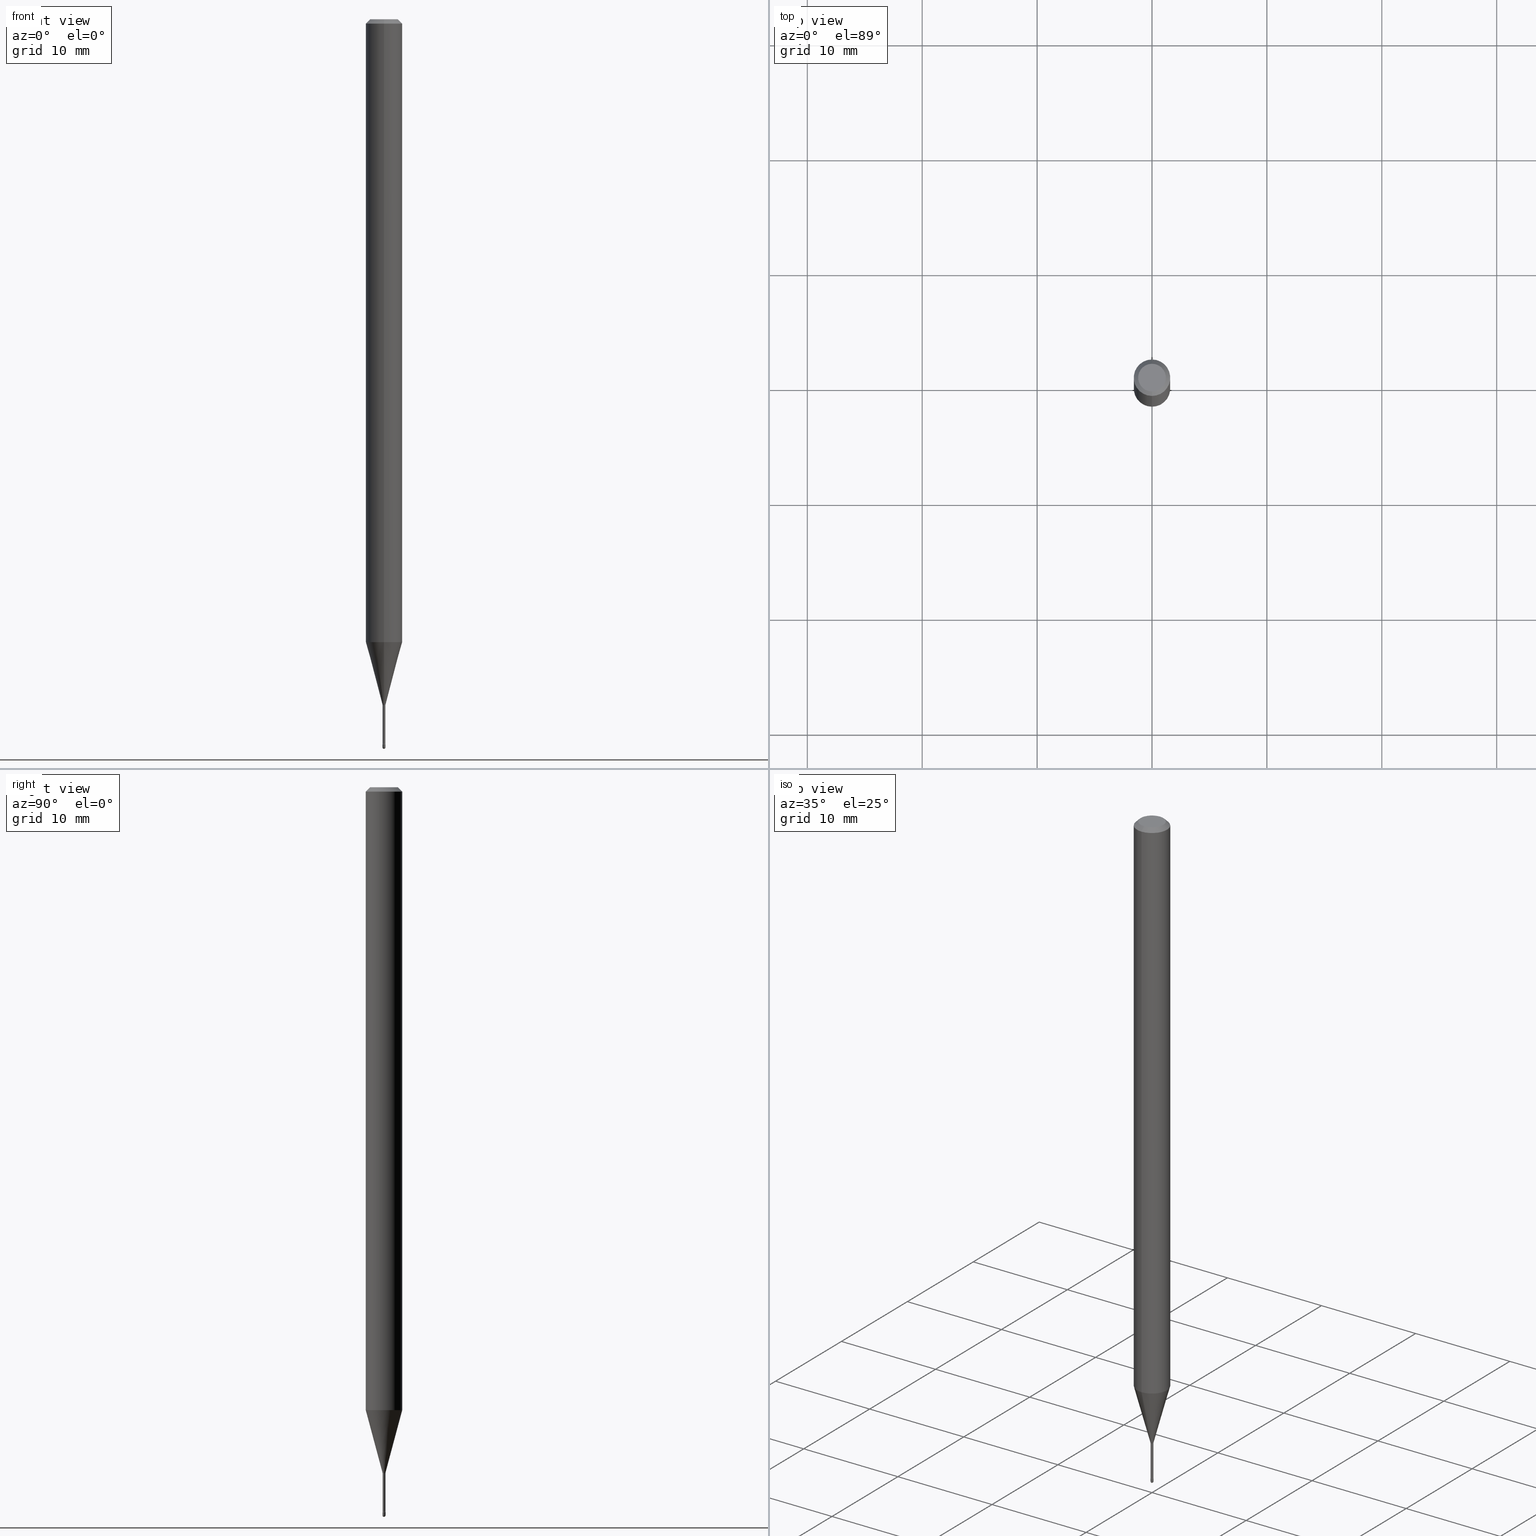
[diagram: canonical four-view strip — front | top / right | iso, engineering-drawing reading convention]
A machine part, canonical four-view strip (front | top / right | iso — engineering-drawing reading convention). The complete STEP part file that produces these views, byte-faithful:
ISO-10303-21;
HEADER;
FILE_DESCRIPTION (( 'STEP AP203' ),
    '1' );
FILE_NAME ('09407.STEP',
    '2024-04-09T22:48:46',
    ( '' ),
    ( '' ),
    'SwSTEP 2.0',
    'SolidWorks 2023',
    '' );
FILE_SCHEMA (( 'CONFIG_CONTROL_DESIGN' ));
ENDSEC;

DATA;
#1 = CIRCLE ( 'NONE', #321, 0.004700000000000012328 ) ;
#2 = DIRECTION ( 'NONE',  ( -6.982962677686265922E-15, -1.000000000000000000, 3.483106191921935554E-15 ) ) ;
#3 = ADVANCED_FACE ( 'NONE', ( #127 ), #339, .T. ) ;
#4 = ORIENTED_EDGE ( 'NONE', *, *, #366, .T. ) ;
#5 = DIRECTION ( 'NONE',  ( -6.982962677686265922E-15, -1.000000000000000000, 0.000000000000000000 ) ) ;
#6 = DIRECTION ( 'NONE',  ( 1.000000000000000000, -6.982962677686336130E-15, 0.000000000000000000 ) ) ;
#7 = AXIS2_PLACEMENT_3D ( 'NONE', #345, #439, #517 ) ;
#8 = AXIS2_PLACEMENT_3D ( 'NONE', #265, #549, #89 ) ;
#9 = DIRECTION ( 'NONE',  ( -2.445468806185136877E-29, 3.491481338843145188E-15, 1.000000000000000000 ) ) ;
#10 = APPROVAL_PERSON_ORGANIZATION ( #290, #69, #209 ) ;
#11 = CARTESIAN_POINT ( 'NONE',  ( 5.748700289335905563E-29, -8.216144592349570329E-15, -2.351974787463811278 ) ) ;
#12 = DIRECTION ( 'NONE',  ( -6.982962677686266711E-15, -1.000000000000000000, 3.493109718909405052E-15 ) ) ;
#13 = PERSON_AND_ORGANIZATION ( #375, #330 ) ;
#14 = CLOSED_SHELL ( 'NONE', ( #166, #139, #241, #465, #247, #455, #121, #282, #3, #59, #77, #185, #273, #224 ) ) ;
#15 = PLANE ( 'NONE',  #93 ) ;
#16 = CIRCLE ( 'NONE', #376, 0.004999999999999997502 ) ;
#17 =( LENGTH_UNIT ( ) NAMED_UNIT ( * ) SI_UNIT ( $, .METRE. ) );
#18 = CARTESIAN_POINT ( 'NONE',  ( -4.364351673553394567E-16, -0.06250000000000745237, -2.134287463322519063 ) ) ;
#19 = PRODUCT_RELATED_PRODUCT_CATEGORY ( 'detail', '', ( #310 ) ) ;
#20 = CARTESIAN_POINT ( 'NONE',  ( 4.440892098500625669E-16, 0.06250000000000000000, 2.597540414594082475E-16 ) ) ;
#21 = DIMENSIONAL_EXPONENTS ( 1.000000000000000000, 0.000000000000000000, 0.000000000000000000, 0.000000000000000000, 0.000000000000000000, 0.000000000000000000, 0.000000000000000000 ) ;
#22 = EDGE_CURVE ( 'NONE', #486, #312, #194, .T. ) ;
#23 = ORIENTED_EDGE ( 'NONE', *, *, #274, .F. ) ;
#24 = CC_DESIGN_PERSON_AND_ORGANIZATION_ASSIGNMENT ( #168, #80, ( #508 ) ) ;
#25 = ORIENTED_EDGE ( 'NONE', *, *, #267, .F. ) ;
#26 = DIRECTION ( 'NONE',  ( 1.839019923739599526E-15, 0.2588190451025248473, 0.9659258262890673130 ) ) ;
#27 = DIRECTION ( 'NONE',  ( 1.000000000000000000, -6.982962677686142071E-15, 0.000000000000000000 ) ) ;
#28 = AXIS2_PLACEMENT_3D ( 'NONE', #170, #297, #338 ) ;
#29 = AXIS2_PLACEMENT_3D ( 'NONE', #542, #212, #240 ) ;
#30 = COORDINATED_UNIVERSAL_TIME_OFFSET ( 5, 0, .BEHIND. ) ;
#31 = EDGE_LOOP ( 'NONE', ( #541, #393, #482, #44 ) ) ;
#32 = DIRECTION ( 'NONE',  ( 2.444331714462359119E-29, -3.493109718909404263E-15, -1.000000000000000000 ) ) ;
#33 = DIRECTION ( 'NONE',  ( -7.105427357600999492E-15, -1.000000000000000000, 0.000000000000000000 ) ) ;
#34 = APPROVAL_ROLE ( '' ) ;
#35 = EDGE_CURVE ( 'NONE', #353, #301, #158, .T. ) ;
#36 = ORIENTED_EDGE ( 'NONE', *, *, #143, .T. ) ;
#37 = CIRCLE ( 'NONE', #360, 0.005000000000000040870 ) ;
#38 = ORIENTED_EDGE ( 'NONE', *, *, #558, .T. ) ;
#39 = AXIS2_PLACEMENT_3D ( 'NONE', #298, #147, #452 ) ;
#40 = DIRECTION ( 'NONE',  ( -6.982962677686265922E-15, -1.000000000000000000, 0.000000000000000000 ) ) ;
#41 = FACE_OUTER_BOUND ( 'NONE', #256, .T. ) ;
#42 = DIRECTION ( 'NONE',  ( -1.000000000000000000, 7.105427357601001070E-15, -4.926315508542082329E-29 ) ) ;
#43 = APPROVAL_DATE_TIME ( #426, #94 ) ;
#44 = ORIENTED_EDGE ( 'NONE', *, *, #359, .F. ) ;
#45 = ORIENTED_EDGE ( 'NONE', *, *, #320, .F. ) ;
#46 = EDGE_LOOP ( 'NONE', ( #114, #316, #137, #503 ) ) ;
#47 = AXIS2_PLACEMENT_3D ( 'NONE', #527, #142, #12 ) ;
#48 = DIRECTION ( 'NONE',  ( 1.000000000000000000, -6.982962677686266711E-15, 4.876176775795936914E-29 ) ) ;
#49 = EDGE_CURVE ( 'NONE', #264, #151, #349, .T. ) ;
#50 = AXIS2_PLACEMENT_3D ( 'NONE', #91, #192, #5 ) ;
#51 = DIRECTION ( 'NONE',  ( -2.444331714462359119E-29, 3.493109718909404657E-15, 1.000000000000000000 ) ) ;
#52 = DIRECTION ( 'NONE',  ( -2.445468806185136597E-29, 3.491481338843145583E-15, 1.000000000000000000 ) ) ;
#53 = APPROVAL_DATE_TIME ( #531, #69 ) ;
#54 = CC_DESIGN_PERSON_AND_ORGANIZATION_ASSIGNMENT ( #385, #126, ( #508 ) ) ;
#55 = DIRECTION ( 'NONE',  ( -1.000000000000000000, 6.982962677686265922E-15, -4.883557194083112340E-29 ) ) ;
#56 = DIRECTION ( 'NONE',  ( -2.444331714462359119E-29, 3.493109718909404263E-15, 1.000000000000000000 ) ) ;
#57 = VERTEX_POINT ( 'NONE', #260 ) ;
#58 = CARTESIAN_POINT ( 'NONE',  ( -3.638900483451488413E-17, -0.005211112605672221960, -2.348092501787272912 ) ) ;
#59 = ADVANCED_FACE ( 'NONE', ( #41 ), #520, .F. ) ;
#60 = DATE_TIME_ROLE ( 'creation_date' ) ;
#61 = DIRECTION ( 'NONE',  ( -2.444331714462359119E-29, 3.493109718909404263E-15, 1.000000000000000000 ) ) ;
#62 = DIRECTION ( 'NONE',  ( -2.444331714462359119E-29, 3.493109718909404657E-15, 1.000000000000000000 ) ) ;
#63 = CIRCLE ( 'NONE', #47, 0.04749999999999999362 ) ;
#64 = APPROVAL_PERSON_ORGANIZATION ( #164, #342, #176 ) ;
#65 = DIRECTION ( 'NONE',  ( -2.444331714462359119E-29, 3.493109718909404657E-15, 1.000000000000000000 ) ) ;
#66 = EDGE_LOOP ( 'NONE', ( #464, #507, #415, #266, #180 ) ) ;
#67 = ADVANCED_FACE ( 'NONE', ( #473 ), #433, .T. ) ;
#68 = DIRECTION ( 'NONE',  ( -2.444331714462359119E-29, 3.493109718909404657E-15, 1.000000000000000000 ) ) ;
#69 = APPROVAL ( #283, 'UNSPECIFIED' ) ;
#70 = EDGE_LOOP ( 'NONE', ( #340, #419 ) ) ;
#71 = ORIENTED_EDGE ( 'NONE', *, *, #346, .F. ) ;
#72 = LINE ( 'NONE', #538, #210 ) ;
#73 = LINE ( 'NONE', #417, #479 ) ;
#74 = SECURITY_CLASSIFICATION_LEVEL ( 'unclassified' ) ;
#75 = ORIENTED_EDGE ( 'NONE', *, *, #258, .F. ) ;
#76 = CARTESIAN_POINT ( 'NONE',  ( 5.216906534378652814E-29, -7.455300281078391221E-15, -2.134287463322519507 ) ) ;
#77 = ADVANCED_FACE ( 'NONE', ( #322 ), #15, .F. ) ;
#78 = PERSON_AND_ORGANIZATION_ROLE ( 'classification_officer' ) ;
#79 = ORIENTED_EDGE ( 'NONE', *, *, #485, .F. ) ;
#80 = PERSON_AND_ORGANIZATION_ROLE ( 'creator' ) ;
#81 = VERTEX_POINT ( 'NONE', #58 ) ;
#82 = CARTESIAN_POINT ( 'NONE',  ( -1.375643647503619973E-16, -0.01970000000000822135, -2.351974787463811278 ) ) ;
#83 = CIRCLE ( 'NONE', #95, 0.004700000000000003654 ) ;
#84 = EDGE_CURVE ( 'NONE', #380, #312, #72, .T. ) ;
#85 = EDGE_LOOP ( 'NONE', ( #75, #36, #509, #45 ) ) ;
#86 = CONICAL_SURFACE ( 'NONE', #470, 0.005211112605664020188, 0.2617993877991501295 ) ;
#87 = VERTEX_POINT ( 'NONE', #149 ) ;
#88 = PRODUCT_DEFINITION_SHAPE ( 'NONE', 'NONE',  #179 ) ;
#89 = DIRECTION ( 'NONE',  ( -6.982962677686266711E-15, -1.000000000000000000, 0.000000000000000000 ) ) ;
#90 = ORIENTED_EDGE ( 'NONE', *, *, #22, .F. ) ;
#91 = CARTESIAN_POINT ( 'NONE',  ( 5.749006564613659511E-29, -8.215705988719720039E-15, -2.351974787463811278 ) ) ;
#92 = ORIENTED_EDGE ( 'NONE', *, *, #218, .F. ) ;
#93 = AXIS2_PLACEMENT_3D ( 'NONE', #198, #461, #535 ) ;
#94 = APPROVAL ( #197, 'UNSPECIFIED' ) ;
#95 = AXIS2_PLACEMENT_3D ( 'NONE', #548, #213, #117 ) ;
#96 = DIRECTION ( 'NONE',  ( -6.982962677686265922E-15, -1.000000000000000000, 0.000000000000000000 ) ) ;
#97 = EDGE_CURVE ( 'NONE', #560, #57, #37, .T. ) ;
#98 = CARTESIAN_POINT ( 'NONE',  ( 3.339550858072475935E-17, 0.004700000000000007991, 4.616557832123718294E-16 ) ) ;
#99 = CARTESIAN_POINT ( 'NONE',  ( 2.015285171659929745E-45, -2.895527618967988786E-31, -8.266968401839803146E-17 ) ) ;
#100 =( NAMED_UNIT ( * ) SI_UNIT ( $, .STERADIAN. ) SOLID_ANGLE_UNIT ( ) );
#101 = AXIS2_PLACEMENT_3D ( 'NONE', #405, #281, #238 ) ;
#102 = AXIS2_PLACEMENT_3D ( 'NONE', #76, #456, #425 ) ;
#103 = DIRECTION ( 'NONE',  ( -1.807323732225328562E-15, -0.2588190451025179639, 0.9659258262890689783 ) ) ;
#104 = APPLICATION_PROTOCOL_DEFINITION ( 'international standard', 'config_control_design', 1994, #280 ) ;
#105 = FACE_OUTER_BOUND ( 'NONE', #292, .T. ) ;
#106 = PERSON_AND_ORGANIZATION_ROLE ( 'design_owner' ) ;
#107 = DIRECTION ( 'NONE',  ( 2.444331714462359119E-29, -3.493109718909404657E-15, -1.000000000000000000 ) ) ;
#108 = DIRECTION ( 'NONE',  ( 1.000000000000000000, -6.982962677686265922E-15, 4.883557194083112340E-29 ) ) ;
#109 = DIRECTION ( 'NONE',  ( -6.982962677686265922E-15, -1.000000000000000000, 3.493109718909401107E-15 ) ) ;
#110 = MECHANICAL_CONTEXT ( 'NONE', #280, 'mechanical' ) ;
#111 = PLANE ( 'NONE',  #435 ) ;
#112 = AXIS2_PLACEMENT_3D ( 'NONE', #539, #496, #406 ) ;
#113 = PERSON_AND_ORGANIZATION ( #375, #330 ) ;
#114 = ORIENTED_EDGE ( 'NONE', *, *, #143, .F. ) ;
#115 = ORIENTED_EDGE ( 'NONE', *, *, #227, .F. ) ;
#116 = MANIFOLD_SOLID_BREP ( 'Body-Move/Copy2[2]', #14 ) ;
#117 = DIRECTION ( 'NONE',  ( -6.982962677686265922E-15, -1.000000000000000000, 0.000000000000000000 ) ) ;
#118 = ORIENTED_EDGE ( 'NONE', *, *, #218, .T. ) ;
#119 = VERTEX_POINT ( 'NONE', #540 ) ;
#120 = DIRECTION ( 'NONE',  ( -2.444331714462359119E-29, 3.493109718909404657E-15, 1.000000000000000000 ) ) ;
#121 = ADVANCED_FACE ( 'NONE', ( #153 ), #409, .T. ) ;
#122 = AXIS2_PLACEMENT_3D ( 'NONE', #562, #255, #336 ) ;
#123 = CALENDAR_DATE ( 2024, 9, 4 ) ;
#124 = CIRCLE ( 'NONE', #252, 0.01500000000000000638 ) ;
#125 = MANIFOLD_SOLID_BREP ( 'Body-Move/Copy2[1]', #144 ) ;
#126 = PERSON_AND_ORGANIZATION_ROLE ( 'design_supplier' ) ;
#127 = FACE_OUTER_BOUND ( 'NONE', #525, .T. ) ;
#128 = CARTESIAN_POINT ( 'NONE',  ( 6.101444671431915719E-29, -8.711245940413648329E-15, -2.495000000000000107 ) ) ;
#129 = EDGE_CURVE ( 'NONE', #560, #151, #477, .T. ) ;
#130 = ORIENTED_EDGE ( 'NONE', *, *, #49, .F. ) ;
#131 = CIRCLE ( 'NONE', #191, 0.004999999999999997502 ) ;
#132 = AXIS2_PLACEMENT_3D ( 'NONE', #289, #150, #109 ) ;
#133 = ORIENTED_EDGE ( 'NONE', *, *, #371, .F. ) ;
#134 = FACE_OUTER_BOUND ( 'NONE', #152, .T. ) ;
#135 = ORIENTED_EDGE ( 'NONE', *, *, #202, .F. ) ;
#136 = LINE ( 'NONE', #98, #544 ) ;
#137 = ORIENTED_EDGE ( 'NONE', *, *, #320, .T. ) ;
#138 = CYLINDRICAL_SURFACE ( 'NONE', #395, 0.004999999999999997502 ) ;
#139 = ADVANCED_FACE ( 'NONE', ( #384 ), #172, .T. ) ;
#140 = TOROIDAL_SURFACE ( 'NONE', #454, 0.01970000000000000570, 0.01500000000000006189 ) ;
#141 = CARTESIAN_POINT ( 'NONE',  ( 4.440892098501151740E-16, 0.06249999999999995143, -0.01500000000000030129 ) ) ;
#142 = DIRECTION ( 'NONE',  ( -2.444331714462359119E-29, 3.493109718909404657E-15, 1.000000000000000000 ) ) ;
#143 = EDGE_CURVE ( 'NONE', #545, #169, #494, .T. ) ;
#144 = CLOSED_SHELL ( 'NONE', ( #67, #208, #490, #233, #399 ) ) ;
#145 = AXIS2_PLACEMENT_3D ( 'NONE', #408, #107, #284 ) ;
#146 = CC_DESIGN_APPROVAL ( #69, ( #179 ) ) ;
#147 = DIRECTION ( 'NONE',  ( -2.444331714462359119E-29, 3.493109718909404657E-15, 1.000000000000000000 ) ) ;
#148 = DIRECTION ( 'NONE',  ( 7.105427357601001859E-15, 1.000000000000000000, 0.000000000000000000 ) ) ;
#149 = CARTESIAN_POINT ( 'NONE',  ( -3.281992458506798680E-17, -0.004700000000008219304, -2.351974787463811278 ) ) ;
#150 = DIRECTION ( 'NONE',  ( -2.444331714462359119E-29, 3.493109718909404657E-15, 1.000000000000000000 ) ) ;
#151 = VERTEX_POINT ( 'NONE', #451 ) ;
#152 = EDGE_LOOP ( 'NONE', ( #438, #296, #432, #225 ) ) ;
#153 = FACE_OUTER_BOUND ( 'NONE', #397, .T. ) ;
#154 = CARTESIAN_POINT ( 'NONE',  ( 3.552713678806574616E-17, 0.004999999999991322150, -2.484999999999999876 ) ) ;
#155 =( NAMED_UNIT ( * ) PLANE_ANGLE_UNIT ( ) SI_UNIT ( $, .RADIAN. ) );
#156 = ORIENTED_EDGE ( 'NONE', *, *, #352, .T. ) ;
#157 = LINE ( 'NONE', #459, #318 ) ;
#158 = CIRCLE ( 'NONE', #519, 0.005000000000000001839 ) ;
#159 = CIRCLE ( 'NONE', #521, 0.01500000000000006189 ) ;
#160 = CARTESIAN_POINT ( 'NONE',  ( -0.004999999999999997502, -8.658261396931429042E-15, -2.495000000000000551 ) ) ;
#161 = LOCAL_TIME ( 18, 48, 46.00000000000000000, #30 ) ;
#162 = DIRECTION ( 'NONE',  ( 1.000000000000000000, -6.982962677686265922E-15, 4.876176775795935793E-29 ) ) ;
#163 = EDGE_CURVE ( 'NONE', #81, #545, #386, .T. ) ;
#164 = PERSON_AND_ORGANIZATION ( #375, #330 ) ;
#165 = ORIENTED_EDGE ( 'NONE', *, *, #267, .T. ) ;
#166 = ADVANCED_FACE ( 'NONE', ( #250 ), #140, .F. ) ;
#167 = DIRECTION ( 'NONE',  ( -2.444331714462359119E-29, 3.493109718909404657E-15, 1.000000000000000000 ) ) ;
#168 = PERSON_AND_ORGANIZATION ( #375, #330 ) ;
#169 = VERTEX_POINT ( 'NONE', #390 ) ;
#170 = CARTESIAN_POINT ( 'NONE',  ( 6.066709664809331474E-29, -8.670177699308193072E-15, -2.482015037688680259 ) ) ;
#171 = CARTESIAN_POINT ( 'NONE',  ( 0.000000000000000000, 0.000000000000000000, 0.000000000000000000 ) ) ;
#172 = CYLINDRICAL_SURFACE ( 'NONE', #101, 0.004700000000000007991 ) ;
#173 = VECTOR ( 'NONE', #379, 39.37007874015748143 ) ;
#174 = AXIS2_PLACEMENT_3D ( 'NONE', #200, #498, #27 ) ;
#175 = ORIENTED_EDGE ( 'NONE', *, *, #84, .F. ) ;
#176 = APPROVAL_ROLE ( '' ) ;
#177 = ORIENTED_EDGE ( 'NONE', *, *, #352, .F. ) ;
#178 = DIRECTION ( 'NONE',  ( -2.444331714462359119E-29, 3.493109718909404657E-15, 1.000000000000000000 ) ) ;
#179 = PRODUCT_DEFINITION ( 'UNKNOWN', '', #508, #253 ) ;
#180 = ORIENTED_EDGE ( 'NONE', *, *, #427, .F. ) ;
#181 = DIRECTION ( 'NONE',  ( -6.982962677686266711E-15, -1.000000000000000000, 0.000000000000000000 ) ) ;
#182 = AXIS2_PLACEMENT_3D ( 'NONE', #171, #306, #431 ) ;
#183 = CIRCLE ( 'NONE', #102, 0.06250000000000000000 ) ;
#184 = ORIENTED_EDGE ( 'NONE', *, *, #196, .T. ) ;
#185 = ADVANCED_FACE ( 'NONE', ( #421 ), #469, .F. ) ;
#186 = CARTESIAN_POINT ( 'NONE',  ( 3.446132268442561466E-17, 0.004699999999991343047, -2.482015037688680259 ) ) ;
#187 = CARTESIAN_POINT ( 'NONE',  ( 6.074164310438962886E-29, -8.680377651489870003E-15, -2.484999999999999876 ) ) ;
#188 = ORIENTED_EDGE ( 'NONE', *, *, #196, .F. ) ;
#189 = CARTESIAN_POINT ( 'NONE',  ( -3.773273898774340269E-16, -0.04749999999999999362, 8.325302762979867448E-17 ) ) ;
#190 = CARTESIAN_POINT ( 'NONE',  ( 0.004999999999999997502, -3.491481338843131630E-17, 2.438088387897967108E-31 ) ) ;
#191 = AXIS2_PLACEMENT_3D ( 'NONE', #561, #308, #344 ) ;
#192 = DIRECTION ( 'NONE',  ( -2.444331714462359119E-29, 3.493109718909404657E-15, 1.000000000000000000 ) ) ;
#193 = FACE_OUTER_BOUND ( 'NONE', #382, .T. ) ;
#194 = LINE ( 'NONE', #537, #173 ) ;
#195 = DIRECTION ( 'NONE',  ( -2.444331714462359119E-29, 3.493109718909404657E-15, 1.000000000000000000 ) ) ;
#196 = EDGE_CURVE ( 'NONE', #324, #312, #226, .T. ) ;
#197 = APPROVAL_STATUS ( 'not_yet_approved' ) ;
#198 = CARTESIAN_POINT ( 'NONE',  ( 3.491481338849208940E-17, 0.004999999999991321283, -2.484999999999999876 ) ) ;
#199 = AXIS2_PLACEMENT_3D ( 'NONE', #441, #51, #96 ) ;
#200 = CARTESIAN_POINT ( 'NONE',  ( 6.101444671431917961E-29, -8.711245940413649907E-15, -2.495000000000000551 ) ) ;
#201 = CALENDAR_DATE ( 2024, 9, 4 ) ;
#202 = EDGE_CURVE ( 'NONE', #522, #486, #434, .T. ) ;
#203 = FACE_OUTER_BOUND ( 'NONE', #70, .T. ) ;
#204 = DIRECTION ( 'NONE',  ( 6.982962677686265133E-15, 1.000000000000000000, 0.000000000000000000 ) ) ;
#205 = DIRECTION ( 'NONE',  ( -6.982962677686265133E-15, -1.000000000000000000, 3.493109718909404657E-15 ) ) ;
#206 = DIRECTION ( 'NONE',  ( -6.982962677686265922E-15, -1.000000000000000000, 3.493109718909404657E-15 ) ) ;
#207 = CARTESIAN_POINT ( 'NONE',  ( -3.281992458512550585E-17, -0.004700000000000007991, 4.944910145701202971E-16 ) ) ;
#208 = ADVANCED_FACE ( 'NONE', ( #302 ), #475, .T. ) ;
#209 = APPROVAL_ROLE ( '' ) ;
#210 = VECTOR ( 'NONE', #325, 39.37007874015748143 ) ;
#211 = AXIS2_PLACEMENT_3D ( 'NONE', #400, #232, #6 ) ;
#212 = DIRECTION ( 'NONE',  ( -2.444331714462359119E-29, 3.493109718909404657E-15, 1.000000000000000000 ) ) ;
#213 = DIRECTION ( 'NONE',  ( -2.444331714462359119E-29, 3.493109718909404657E-15, 1.000000000000000000 ) ) ;
#214 = SHAPE_DEFINITION_REPRESENTATION ( #88, #524 ) ;
#215 = SPHERICAL_SURFACE ( 'NONE', #7, 0.005000000000000040870 ) ;
#216 = VERTEX_POINT ( 'NONE', #257 ) ;
#217 = DIRECTION ( 'NONE',  ( -1.000000000000000000, 6.982962677686265922E-15, -4.883557194083113462E-29 ) ) ;
#218 = EDGE_CURVE ( 'NONE', #259, #57, #131, .T. ) ;
#219 = AXIS2_PLACEMENT_3D ( 'NONE', #305, #178, #547 ) ;
#220 = DATE_TIME_ROLE ( 'classification_date' ) ;
#221 = EDGE_LOOP ( 'NONE', ( #550, #392, #130, #25 ) ) ;
#222 = DIRECTION ( 'NONE',  ( 6.982962677686265922E-15, 1.000000000000000000, 0.000000000000000000 ) ) ;
#223 = ORIENTED_EDGE ( 'NONE', *, *, #443, .F. ) ;
#224 = ADVANCED_FACE ( 'NONE', ( #478 ), #506, .F. ) ;
#225 = ORIENTED_EDGE ( 'NONE', *, *, #483, .F. ) ;
#226 = CIRCLE ( 'NONE', #219, 0.06250000000000000000 ) ;
#227 = EDGE_CURVE ( 'NONE', #301, #353, #440, .T. ) ;
#228 = AXIS2_PLACEMENT_3D ( 'NONE', #99, #230, #354 ) ;
#229 = ORIENTED_EDGE ( 'NONE', *, *, #453, .F. ) ;
#230 = DIRECTION ( 'NONE',  ( -2.444331714462359119E-29, 3.493109718909404657E-15, 1.000000000000000000 ) ) ;
#231 = DIRECTION ( 'NONE',  ( 2.444331714462359119E-29, -3.493109718909404657E-15, -1.000000000000000000 ) ) ;
#232 = DIRECTION ( 'NONE',  ( -2.445468806185136597E-29, 3.491481338843145583E-15, 1.000000000000000000 ) ) ;
#233 = ADVANCED_FACE ( 'NONE', ( #341 ), #215, .T. ) ;
#234 = LINE ( 'NONE', #493, #442 ) ;
#235 = VECTOR ( 'NONE', #446, 39.37007874015748143 ) ;
#236 = PERSON_AND_ORGANIZATION_ROLE ( 'creator' ) ;
#237 = CC_DESIGN_DATE_AND_TIME_ASSIGNMENT ( #404, #60, ( #179 ) ) ;
#238 = DIRECTION ( 'NONE',  ( -6.982962677686265922E-15, -1.000000000000000000, 3.493109718909401107E-15 ) ) ;
#239 = DIRECTION ( 'NONE',  ( -2.444331714462359119E-29, 3.493109718909404657E-15, 1.000000000000000000 ) ) ;
#240 = DIRECTION ( 'NONE',  ( -6.982962677686265922E-15, -1.000000000000000000, 3.493109718909404263E-15 ) ) ;
#241 = ADVANCED_FACE ( 'NONE', ( #134 ), #309, .F. ) ;
#242 = VECTOR ( 'NONE', #61, 39.37007874015748143 ) ;
#243 =( CONVERSION_BASED_UNIT ( 'INCH', #533 ) LENGTH_UNIT ( ) NAMED_UNIT ( #21 ) );
#244 = LINE ( 'NONE', #207, #242 ) ;
#245 = ORIENTED_EDGE ( 'NONE', *, *, #492, .F. ) ;
#246 = DIRECTION ( 'NONE',  ( -6.982962677686265133E-15, -1.000000000000000000, 0.000000000000000000 ) ) ;
#247 = ADVANCED_FACE ( 'NONE', ( #193 ), #412, .T. ) ;
#248 = CYLINDRICAL_SURFACE ( 'NONE', #39, 0.06250000000000000000 ) ;
#249 = ORIENTED_EDGE ( 'NONE', *, *, #359, .T. ) ;
#250 = FACE_OUTER_BOUND ( 'NONE', #85, .T. ) ;
#251 = AXIS2_PLACEMENT_3D ( 'NONE', #369, #68, #40 ) ;
#252 = AXIS2_PLACEMENT_3D ( 'NONE', #358, #489, #497 ) ;
#253 = DESIGN_CONTEXT ( 'detailed design', #502, 'design' ) ;
#254 = DATE_AND_TIME ( #559, #263 ) ;
#255 = DIRECTION ( 'NONE',  ( -2.445468806185136597E-29, 3.491481338843145583E-15, 1.000000000000000000 ) ) ;
#256 = EDGE_LOOP ( 'NONE', ( #156, #463 ) ) ;
#257 = CARTESIAN_POINT ( 'NONE',  ( -0.004999999999999997502, -8.658261396931429042E-15, -2.484999999999999876 ) ) ;
#258 = EDGE_CURVE ( 'NONE', #545, #81, #365, .T. ) ;
#259 = VERTEX_POINT ( 'NONE', #511 ) ;
#260 = CARTESIAN_POINT ( 'NONE',  ( 3.491481338849247767E-17, 0.004999999999991308272, -2.495000000000000551 ) ) ;
#261 = CARTESIAN_POINT ( 'NONE',  ( 5.739516970609894167E-29, -8.202144738891422775E-15, -2.348092501787272912 ) ) ;
#262 = AXIS2_PLACEMENT_3D ( 'NONE', #261, #167, #348 ) ;
#263 = LOCAL_TIME ( 18, 48, 46.00000000000000000, #388 ) ;
#264 = VERTEX_POINT ( 'NONE', #160 ) ;
#265 = CARTESIAN_POINT ( 'NONE',  ( 6.074164310438962886E-29, -8.680377651489870003E-15, -2.484999999999999876 ) ) ;
#266 = ORIENTED_EDGE ( 'NONE', *, *, #443, .T. ) ;
#267 = EDGE_CURVE ( 'NONE', #57, #264, #311, .T. ) ;
#268 = ORIENTED_EDGE ( 'NONE', *, *, #381, .F. ) ;
#269 = FACE_OUTER_BOUND ( 'NONE', #66, .T. ) ;
#270 = EDGE_CURVE ( 'NONE', #119, #324, #73, .T. ) ;
#271 = AXIS2_PLACEMENT_3D ( 'NONE', #275, #195, #2 ) ;
#272 = CARTESIAN_POINT ( 'NONE',  ( 0.000000000000000000, 0.000000000000000000, 0.000000000000000000 ) ) ;
#273 = ADVANCED_FACE ( 'NONE', ( #332 ), #367, .T. ) ;
#274 = EDGE_CURVE ( 'NONE', #169, #87, #83, .T. ) ;
#275 = CARTESIAN_POINT ( 'NONE',  ( 3.666497571693559050E-31, -5.239664578364136248E-17, -0.01500000000000008271 ) ) ;
#276 = AXIS2_PLACEMENT_3D ( 'NONE', #411, #407, #148 ) ;
#277 = DIRECTION ( 'NONE',  ( -2.444331714462359119E-29, 3.493109718909404657E-15, 1.000000000000000000 ) ) ;
#278 = CARTESIAN_POINT ( 'NONE',  ( 6.101444671431917961E-29, -8.711245940413649907E-15, -2.495000000000000551 ) ) ;
#279 = PERSON_AND_ORGANIZATION ( #375, #330 ) ;
#280 = APPLICATION_CONTEXT ( 'configuration controlled 3d designs of mechanical parts and assemblies' ) ;
#281 = DIRECTION ( 'NONE',  ( -2.444331714462359119E-29, 3.493109718909404657E-15, 1.000000000000000000 ) ) ;
#282 = ADVANCED_FACE ( 'NONE', ( #285 ), #248, .T. ) ;
#283 = APPROVAL_STATUS ( 'not_yet_approved' ) ;
#284 = DIRECTION ( 'NONE',  ( 6.982962677686265922E-15, 1.000000000000000000, -3.483106191921935554E-15 ) ) ;
#285 = FACE_OUTER_BOUND ( 'NONE', #347, .T. ) ;
#286 = VECTOR ( 'NONE', #9, 39.37007874015748143 ) ;
#287 = CARTESIAN_POINT ( 'NONE',  ( 6.076989983370064174E-29, -8.676331127025216680E-15, -2.484999999999999876 ) ) ;
#288 = LOCAL_TIME ( 18, 48, 46.00000000000000000, #450 ) ;
#289 = CARTESIAN_POINT ( 'NONE',  ( -1.169113584055446105E-44, 1.669184350826100908E-30, 4.780733988912460139E-16 ) ) ;
#290 = PERSON_AND_ORGANIZATION ( #375, #330 ) ;
#291 = ORIENTED_EDGE ( 'NONE', *, *, #381, .T. ) ;
#292 = EDGE_LOOP ( 'NONE', ( #564, #546, #428, #468 ) ) ;
#293 = CARTESIAN_POINT ( 'NONE',  ( 5.739516970609894167E-29, -8.202144738891422775E-15, -2.348092501787272912 ) ) ;
#294 = CARTESIAN_POINT ( 'NONE',  ( 0.004999999999999997502, -8.711245940413648329E-15, -2.484999999999999876 ) ) ;
#295 = PERSON_AND_ORGANIZATION ( #375, #330 ) ;
#296 = ORIENTED_EDGE ( 'NONE', *, *, #453, .T. ) ;
#297 = DIRECTION ( 'NONE',  ( -2.444331714462359119E-29, 3.493109718909404657E-15, 1.000000000000000000 ) ) ;
#298 = CARTESIAN_POINT ( 'NONE',  ( -1.169113584055446105E-44, 1.669184350826100908E-30, 4.780733988912460139E-16 ) ) ;
#299 = AXIS2_PLACEMENT_3D ( 'NONE', #536, #62, #205 ) ;
#300 = CIRCLE ( 'NONE', #271, 0.06250000000000000000 ) ;
#301 = VERTEX_POINT ( 'NONE', #154 ) ;
#302 = FACE_OUTER_BOUND ( 'NONE', #221, .T. ) ;
#303 = APPROVAL_STATUS ( 'not_yet_approved' ) ;
#304 = ORIENTED_EDGE ( 'NONE', *, *, #383, .T. ) ;
#305 = CARTESIAN_POINT ( 'NONE',  ( 3.666497571693559050E-31, -5.239664578364136248E-17, -0.01500000000000008271 ) ) ;
#306 = DIRECTION ( 'NONE',  ( -2.445468806185136597E-29, 3.491481338843145583E-15, 1.000000000000000000 ) ) ;
#307 = ORIENTED_EDGE ( 'NONE', *, *, #557, .F. ) ;
#308 = DIRECTION ( 'NONE',  ( -2.445468806185136597E-29, 3.491481338843145583E-15, 1.000000000000000000 ) ) ;
#309 = TOROIDAL_SURFACE ( 'NONE', #299, 0.01970000000000001958, 0.01500000000000000638 ) ;
#310 = PRODUCT ( '09407', '09407', '', ( #110 ) ) ;
#311 = CIRCLE ( 'NONE', #174, 0.004999999999999997502 ) ;
#312 = VERTEX_POINT ( 'NONE', #323 ) ;
#313 = VERTEX_POINT ( 'NONE', #294 ) ;
#314 = EDGE_CURVE ( 'NONE', #486, #522, #183, .T. ) ;
#315 = DIRECTION ( 'NONE',  ( -2.444331714462359119E-29, 3.493109718909404263E-15, 1.000000000000000000 ) ) ;
#316 = ORIENTED_EDGE ( 'NONE', *, *, #163, .F. ) ;
#317 = DIRECTION ( 'NONE',  ( -6.982962677686265922E-15, -1.000000000000000000, 0.000000000000000000 ) ) ;
#318 = VECTOR ( 'NONE', #26, 39.37007874015747433 ) ;
#319 = LINE ( 'NONE', #190, #286 ) ;
#320 = EDGE_CURVE ( 'NONE', #81, #87, #159, .T. ) ;
#321 = AXIS2_PLACEMENT_3D ( 'NONE', #356, #277, #398 ) ;
#322 = FACE_OUTER_BOUND ( 'NONE', #327, .T. ) ;
#323 = CARTESIAN_POINT ( 'NONE',  ( -4.364351673553912750E-16, -0.06250000000000005551, -0.01499999999999986587 ) ) ;
#324 = VERTEX_POINT ( 'NONE', #141 ) ;
#325 = DIRECTION ( 'NONE',  ( -4.851104656540964275E-15, -0.7071067811865500152, -0.7071067811865450192 ) ) ;
#326 = UNCERTAINTY_MEASURE_WITH_UNIT (LENGTH_MEASURE( 1.000000000000000082E-05 ), #243, 'distance_accuracy_value', 'NONE');
#327 = EDGE_LOOP ( 'NONE', ( #518, #115 ) ) ;
#328 = ORIENTED_EDGE ( 'NONE', *, *, #97, .T. ) ;
#329 = AXIS2_PLACEMENT_3D ( 'NONE', #430, #335, #551 ) ;
#330 = ORGANIZATION ( 'UNSPECIFIED', 'UNSPECIFIED', '' ) ;
#331 = APPROVAL_PERSON_ORGANIZATION ( #13, #94, #34 ) ;
#332 = FACE_OUTER_BOUND ( 'NONE', #458, .T. ) ;
#333 = DIRECTION ( 'NONE',  ( -2.444331714462359119E-29, 3.493109718909404657E-15, 1.000000000000000000 ) ) ;
#334 = EDGE_LOOP ( 'NONE', ( #472, #328, #92, #307 ) ) ;
#335 = DIRECTION ( 'NONE',  ( -2.444331714462359119E-29, 3.493109718909404657E-15, 1.000000000000000000 ) ) ;
#336 = DIRECTION ( 'NONE',  ( 1.000000000000000000, -6.982962677686142071E-15, 0.000000000000000000 ) ) ;
#337 = EDGE_CURVE ( 'NONE', #380, #119, #514, .T. ) ;
#338 = DIRECTION ( 'NONE',  ( -6.982962677686265133E-15, -1.000000000000000000, 3.493109718909404657E-15 ) ) ;
#339 = CONICAL_SURFACE ( 'NONE', #554, 0.06250000000000000000, 0.7853981633974483900 ) ;
#340 = ORIENTED_EDGE ( 'NONE', *, *, #371, .T. ) ;
#341 = FACE_OUTER_BOUND ( 'NONE', #334, .T. ) ;
#342 = APPROVAL ( #303, 'UNSPECIFIED' ) ;
#343 = EDGE_LOOP ( 'NONE', ( #229, #355, #422, #413 ) ) ;
#344 = DIRECTION ( 'NONE',  ( 1.000000000000000000, -6.982962677686142071E-15, 0.000000000000000000 ) ) ;
#345 = CARTESIAN_POINT ( 'NONE',  ( 6.101444671431915719E-29, -8.711245940413648329E-15, -2.495000000000000107 ) ) ;
#346 = EDGE_CURVE ( 'NONE', #312, #324, #300, .T. ) ;
#347 = EDGE_LOOP ( 'NONE', ( #445, #563, #373, #188 ) ) ;
#348 = DIRECTION ( 'NONE',  ( -6.982962677686265922E-15, -1.000000000000000000, 0.000000000000000000 ) ) ;
#349 = CIRCLE ( 'NONE', #122, 0.004999999999999997502 ) ;
#350 = AXIS2_PLACEMENT_3D ( 'NONE', #462, #333, #378 ) ;
#351 = CC_DESIGN_APPROVAL ( #342, ( #480 ) ) ;
#352 = EDGE_CURVE ( 'NONE', #119, #380, #63, .T. ) ;
#353 = VERTEX_POINT ( 'NONE', #532 ) ;
#354 = DIRECTION ( 'NONE',  ( -6.982962677686266711E-15, -1.000000000000000000, 3.493109718909405052E-15 ) ) ;
#355 = ORIENTED_EDGE ( 'NONE', *, *, #370, .F. ) ;
#356 = CARTESIAN_POINT ( 'NONE',  ( 6.066868072394927886E-29, -8.669950850629620107E-15, -2.482015037688680259 ) ) ;
#357 = CC_DESIGN_PERSON_AND_ORGANIZATION_ASSIGNMENT ( #113, #106, ( #310 ) ) ;
#358 = CARTESIAN_POINT ( 'NONE',  ( 1.399769189448004948E-16, 0.01969999999999134943, -2.482015037688680259 ) ) ;
#359 = EDGE_CURVE ( 'NONE', #81, #486, #234, .T. ) ;
#360 = AXIS2_PLACEMENT_3D ( 'NONE', #501, #108, #204 ) ;
#361 = AXIS2_PLACEMENT_3D ( 'NONE', #449, #55, #246 ) ;
#362 = CARTESIAN_POINT ( 'NONE',  ( 2.405581959609985270E-16, 0.005211112605655818415, -2.348092501787272912 ) ) ;
#363 = CARTESIAN_POINT ( 'NONE',  ( -0.004999999999999997502, 3.552713678800499154E-17, -2.459467545127451822E-31 ) ) ;
#364 = APPLICATION_PROTOCOL_DEFINITION ( 'international standard', 'config_control_design', 1994, #502 ) ;
#365 = CIRCLE ( 'NONE', #350, 0.005211112605664020188 ) ;
#366 = EDGE_CURVE ( 'NONE', #264, #216, #529, .T. ) ;
#367 = CYLINDRICAL_SURFACE ( 'NONE', #132, 0.004700000000000007991 ) ;
#368 = VERTEX_POINT ( 'NONE', #186 ) ;
#369 = CARTESIAN_POINT ( 'NONE',  ( 5.739516970609894167E-29, -8.202144738891422775E-15, -2.348092501787272912 ) ) ;
#370 = EDGE_CURVE ( 'NONE', #515, #368, #401, .T. ) ;
#371 = EDGE_CURVE ( 'NONE', #313, #216, #16, .T. ) ;
#372 = DIRECTION ( 'NONE',  ( 4.937700262164548042E-15, 0.7071067811865451302, -0.7071067811865499042 ) ) ;
#373 = ORIENTED_EDGE ( 'NONE', *, *, #22, .T. ) ;
#374 = AXIS2_PLACEMENT_3D ( 'NONE', #128, #217, #222 ) ;
#375 = PERSON ( 'UNSPECIFIED', 'UNSPECIFIED', 'UNSPECIFIED', ('UNSPECIFIED'), ('UNSPECIFIED'), ('UNSPECIFIED') ) ;
#376 = AXIS2_PLACEMENT_3D ( 'NONE', #523, #487, #526 ) ;
#377 = CARTESIAN_POINT ( 'NONE',  ( -3.281992458506486833E-17, -0.004700000000008682476, -2.482015037688680259 ) ) ;
#378 = DIRECTION ( 'NONE',  ( -6.982962677686265922E-15, -1.000000000000000000, 0.000000000000000000 ) ) ;
#379 = DIRECTION ( 'NONE',  ( -2.444331714462359119E-29, 3.493109718909404263E-15, 1.000000000000000000 ) ) ;
#380 = VERTEX_POINT ( 'NONE', #189 ) ;
#381 = EDGE_CURVE ( 'NONE', #368, #169, #136, .T. ) ;
#382 = EDGE_LOOP ( 'NONE', ( #476, #38, #71, #90 ) ) ;
#383 = EDGE_CURVE ( 'NONE', #368, #515, #1, .T. ) ;
#384 = FACE_OUTER_BOUND ( 'NONE', #516, .T. ) ;
#385 = PERSON_AND_ORGANIZATION ( #375, #330 ) ;
#386 = CIRCLE ( 'NONE', #251, 0.005211112605664020188 ) ;
#387 = VECTOR ( 'NONE', #56, 39.37007874015748143 ) ;
#388 = COORDINATED_UNIVERSAL_TIME_OFFSET ( 5, 0, .BEHIND. ) ;
#389 = EDGE_LOOP ( 'NONE', ( #165, #4, #133, #223, #118 ) ) ;
#390 = CARTESIAN_POINT ( 'NONE',  ( 3.339550858078543385E-17, 0.004699999999991787136, -2.351974787463811278 ) ) ;
#391 = EDGE_CURVE ( 'NONE', #87, #169, #420, .T. ) ;
#392 = ORIENTED_EDGE ( 'NONE', *, *, #129, .T. ) ;
#393 = ORIENTED_EDGE ( 'NONE', *, *, #492, .T. ) ;
#394 = DIRECTION ( 'NONE',  ( -1.000000000000000000, 6.982962677686265922E-15, -4.883557194083112340E-29 ) ) ;
#395 = AXIS2_PLACEMENT_3D ( 'NONE', #272, #444, #48 ) ;
#396 = CC_DESIGN_SECURITY_CLASSIFICATION ( #480, ( #508 ) ) ;
#397 = EDGE_LOOP ( 'NONE', ( #245, #484, #249, #135 ) ) ;
#398 = DIRECTION ( 'NONE',  ( -6.982962677686265922E-15, -1.000000000000000000, 0.000000000000000000 ) ) ;
#399 = ADVANCED_FACE ( 'NONE', ( #269 ), #138, .T. ) ;
#400 = CARTESIAN_POINT ( 'NONE',  ( 6.076989983370064174E-29, -8.676331127025216680E-15, -2.484999999999999876 ) ) ;
#401 = CIRCLE ( 'NONE', #199, 0.004700000000000012328 ) ;
#402 = LOCAL_TIME ( 18, 48, 46.00000000000000000, #457 ) ;
#403 = DIRECTION ( 'NONE',  ( 6.982962677686265922E-15, 1.000000000000000000, -3.483106191921935554E-15 ) ) ;
#404 = DATE_AND_TIME ( #201, #288 ) ;
#405 = CARTESIAN_POINT ( 'NONE',  ( -1.169113584055446105E-44, 1.669184350826100908E-30, 4.780733988912460139E-16 ) ) ;
#406 = DIRECTION ( 'NONE',  ( 1.000000000000000000, 0.000000000000000000, 0.000000000000000000 ) ) ;
#407 = DIRECTION ( 'NONE',  ( 1.000000000000000000, -7.105427357601001070E-15, 4.926335450446441508E-29 ) ) ;
#408 = CARTESIAN_POINT ( 'NONE',  ( 3.666497571693559050E-31, -5.239664578364136248E-17, -0.01500000000000008271 ) ) ;
#409 = CONICAL_SURFACE ( 'NONE', #262, 0.005211112605664020188, 0.2617993877991501295 ) ;
#410 = CONICAL_SURFACE ( 'NONE', #145, 0.06250000000000000000, 0.7853981633974483900 ) ;
#411 = CARTESIAN_POINT ( 'NONE',  ( 1.399769189447972161E-16, 0.01969999999999179005, -2.351974787463811278 ) ) ;
#412 = CYLINDRICAL_SURFACE ( 'NONE', #29, 0.06250000000000000000 ) ;
#413 = ORIENTED_EDGE ( 'NONE', *, *, #35, .T. ) ;
#414 = DIRECTION ( 'NONE',  ( -2.438088387897960049E-29, 3.491481338843145188E-15, 1.000000000000000000 ) ) ;
#415 = ORIENTED_EDGE ( 'NONE', *, *, #557, .T. ) ;
#416 = ORIENTED_EDGE ( 'NONE', *, *, #485, .T. ) ;
#417 = CARTESIAN_POINT ( 'NONE',  ( 4.364351673553919652E-16, 0.06249999999999995143, -0.01500000000000030129 ) ) ;
#418 = CC_DESIGN_PERSON_AND_ORGANIZATION_ASSIGNMENT ( #295, #78, ( #480 ) ) ;
#419 = ORIENTED_EDGE ( 'NONE', *, *, #427, .T. ) ;
#420 = CIRCLE ( 'NONE', #50, 0.004700000000000003654 ) ;
#421 = FACE_OUTER_BOUND ( 'NONE', #343, .T. ) ;
#422 = ORIENTED_EDGE ( 'NONE', *, *, #483, .T. ) ;
#423 = CARTESIAN_POINT ( 'NONE',  ( 5.748700289335905563E-29, -8.216144592349570329E-15, -2.351974787463811278 ) ) ;
#424 = CARTESIAN_POINT ( 'NONE',  ( 3.316907271900976096E-16, 0.04749999999999999362, 3.177914578822727297E-17 ) ) ;
#425 = DIRECTION ( 'NONE',  ( -6.982962677686265922E-15, -1.000000000000000000, 4.370956789862821150E-15 ) ) ;
#426 = DATE_AND_TIME ( #123, #481 ) ;
#427 = EDGE_CURVE ( 'NONE', #216, #313, #495, .T. ) ;
#428 = ORIENTED_EDGE ( 'NONE', *, *, #346, .T. ) ;
#429 = ORIENTED_EDGE ( 'NONE', *, *, #270, .T. ) ;
#430 = CARTESIAN_POINT ( 'NONE',  ( 5.216906534378652814E-29, -7.455300281078391221E-15, -2.134287463322519507 ) ) ;
#431 = DIRECTION ( 'NONE',  ( 1.000000000000000000, -6.982962677686266711E-15, 4.876176775795936914E-29 ) ) ;
#432 = ORIENTED_EDGE ( 'NONE', *, *, #227, .T. ) ;
#433 = CYLINDRICAL_SURFACE ( 'NONE', #182, 0.004999999999999997502 ) ;
#434 = CIRCLE ( 'NONE', #329, 0.06250000000000000000 ) ;
#435 = AXIS2_PLACEMENT_3D ( 'NONE', #287, #414, #162 ) ;
#436 = APPROVAL_DATE_TIME ( #254, #342 ) ;
#437 = ORIENTED_EDGE ( 'NONE', *, *, #370, .T. ) ;
#438 = ORIENTED_EDGE ( 'NONE', *, *, #383, .F. ) ;
#439 = DIRECTION ( 'NONE',  ( -1.000000000000000000, 6.982962677686265922E-15, -4.883557194083113462E-29 ) ) ;
#440 = CIRCLE ( 'NONE', #8, 0.005000000000000001839 ) ;
#441 = CARTESIAN_POINT ( 'NONE',  ( 6.066868072394927886E-29, -8.669950850629620107E-15, -2.482015037688680259 ) ) ;
#442 = VECTOR ( 'NONE', #103, 39.37007874015749564 ) ;
#443 = EDGE_CURVE ( 'NONE', #259, #313, #319, .T. ) ;
#444 = DIRECTION ( 'NONE',  ( -2.445468806185136597E-29, 3.491481338843145583E-15, 1.000000000000000000 ) ) ;
#445 = ORIENTED_EDGE ( 'NONE', *, *, #558, .F. ) ;
#446 = DIRECTION ( 'NONE',  ( -2.445468806185136877E-29, 3.491481338843145188E-15, 1.000000000000000000 ) ) ;
#447 = CIRCLE ( 'NONE', #556, 0.004999999999999997502 ) ;
#448 = DIRECTION ( 'NONE',  ( 1.000000000000000000, -6.982962677686142071E-15, 0.000000000000000000 ) ) ;
#449 = CARTESIAN_POINT ( 'NONE',  ( -1.375643647503589158E-16, -0.01970000000000868973, -2.482015037688680259 ) ) ;
#450 = COORDINATED_UNIVERSAL_TIME_OFFSET ( 5, 0, .BEHIND. ) ;
#451 = CARTESIAN_POINT ( 'NONE',  ( -3.552713678794411983E-17, -0.005000000000008730100, -2.495000000000000551 ) ) ;
#452 = DIRECTION ( 'NONE',  ( -6.982962677686265922E-15, -1.000000000000000000, 3.493109718909404263E-15 ) ) ;
#453 = EDGE_CURVE ( 'NONE', #368, #301, #124, .T. ) ;
#454 = AXIS2_PLACEMENT_3D ( 'NONE', #423, #120, #513 ) ;
#455 = ADVANCED_FACE ( 'NONE', ( #504 ), #86, .T. ) ;
#456 = DIRECTION ( 'NONE',  ( -2.444331714462359119E-29, 3.493109718909404657E-15, 1.000000000000000000 ) ) ;
#457 = COORDINATED_UNIVERSAL_TIME_OFFSET ( 5, 0, .BEHIND. ) ;
#458 = EDGE_LOOP ( 'NONE', ( #268, #304, #416, #23 ) ) ;
#459 = CARTESIAN_POINT ( 'NONE',  ( 3.702718207188196635E-17, 0.005211112605655818415, -2.348092501787272912 ) ) ;
#460 = CC_DESIGN_DATE_AND_TIME_ASSIGNMENT ( #553, #220, ( #480 ) ) ;
#461 = DIRECTION ( 'NONE',  ( -2.444331714462359119E-29, 3.493109718909404263E-15, 1.000000000000000000 ) ) ;
#462 = CARTESIAN_POINT ( 'NONE',  ( 5.739516970609894167E-29, -8.202144738891422775E-15, -2.348092501787272912 ) ) ;
#463 = ORIENTED_EDGE ( 'NONE', *, *, #337, .T. ) ;
#464 = ORIENTED_EDGE ( 'NONE', *, *, #366, .F. ) ;
#465 = ADVANCED_FACE ( 'NONE', ( #105 ), #410, .T. ) ;
#466 = CARTESIAN_POINT ( 'NONE',  ( 6.101444671431915719E-29, -8.711245940413648329E-15, -2.495000000000000107 ) ) ;
#467 = COORDINATED_UNIVERSAL_TIME_OFFSET ( 5, 0, .BEHIND. ) ;
#468 = ORIENTED_EDGE ( 'NONE', *, *, #270, .F. ) ;
#469 = TOROIDAL_SURFACE ( 'NONE', #28, 0.01970000000000001958, 0.01500000000000000638 ) ;
#470 = AXIS2_PLACEMENT_3D ( 'NONE', #293, #239, #500 ) ;
#471 = CC_DESIGN_APPROVAL ( #94, ( #508 ) ) ;
#472 = ORIENTED_EDGE ( 'NONE', *, *, #129, .F. ) ;
#473 = FACE_OUTER_BOUND ( 'NONE', #389, .T. ) ;
#474 = CARTESIAN_POINT ( 'NONE',  ( 3.666497571693559050E-31, -5.239664578364136248E-17, -0.01500000000000008271 ) ) ;
#475 = SPHERICAL_SURFACE ( 'NONE', #374, 0.005000000000000040870 ) ;
#476 = ORIENTED_EDGE ( 'NONE', *, *, #314, .T. ) ;
#477 = CIRCLE ( 'NONE', #566, 0.005000000000000040870 ) ;
#478 = FACE_OUTER_BOUND ( 'NONE', #46, .T. ) ;
#479 = VECTOR ( 'NONE', #372, 39.37007874015748143 ) ;
#480 = SECURITY_CLASSIFICATION ( '', '', #74 ) ;
#481 = LOCAL_TIME ( 18, 48, 46.00000000000000000, #467 ) ;
#482 = ORIENTED_EDGE ( 'NONE', *, *, #314, .F. ) ;
#483 = EDGE_CURVE ( 'NONE', #515, #353, #488, .T. ) ;
#484 = ORIENTED_EDGE ( 'NONE', *, *, #258, .T. ) ;
#485 = EDGE_CURVE ( 'NONE', #515, #87, #244, .T. ) ;
#486 = VERTEX_POINT ( 'NONE', #18 ) ;
#487 = DIRECTION ( 'NONE',  ( -2.445468806185136597E-29, 3.491481338843145583E-15, 1.000000000000000000 ) ) ;
#488 = CIRCLE ( 'NONE', #361, 0.01500000000000000638 ) ;
#489 = DIRECTION ( 'NONE',  ( 1.000000000000000000, -7.105427357601001070E-15, 4.926335450446441508E-29 ) ) ;
#490 = ADVANCED_FACE ( 'NONE', ( #203 ), #111, .T. ) ;
#491 = CALENDAR_DATE ( 2024, 9, 4 ) ;
#492 = EDGE_CURVE ( 'NONE', #545, #522, #157, .T. ) ;
#493 = CARTESIAN_POINT ( 'NONE',  ( -3.638900483451488413E-17, -0.005211112605672221960, -2.348092501787272912 ) ) ;
#494 = CIRCLE ( 'NONE', #276, 0.01500000000000006189 ) ;
#495 = CIRCLE ( 'NONE', #211, 0.004999999999999997502 ) ;
#496 = DIRECTION ( 'NONE',  ( 0.000000000000000000, 0.000000000000000000, 1.000000000000000000 ) ) ;
#497 = DIRECTION ( 'NONE',  ( 7.105427357601000281E-15, 1.000000000000000000, 0.000000000000000000 ) ) ;
#498 = DIRECTION ( 'NONE',  ( -2.445468806185136597E-29, 3.491481338843145583E-15, 1.000000000000000000 ) ) ;
#499 = CARTESIAN_POINT ( 'NONE',  ( 6.113885807035136759E-29, -8.728397185408077852E-15, -2.500000000000000000 ) ) ;
#500 = DIRECTION ( 'NONE',  ( -6.982962677686265922E-15, -1.000000000000000000, 0.000000000000000000 ) ) ;
#501 = CARTESIAN_POINT ( 'NONE',  ( 6.101444671431915719E-29, -8.711245940413648329E-15, -2.495000000000000107 ) ) ;
#502 = APPLICATION_CONTEXT ( 'configuration controlled 3d designs of mechanical parts and assemblies' ) ;
#503 = ORIENTED_EDGE ( 'NONE', *, *, #391, .T. ) ;
#504 = FACE_OUTER_BOUND ( 'NONE', #31, .T. ) ;
#505 = LINE ( 'NONE', #20, #387 ) ;
#506 = TOROIDAL_SURFACE ( 'NONE', #534, 0.01970000000000000570, 0.01500000000000006189 ) ;
#507 = ORIENTED_EDGE ( 'NONE', *, *, #49, .T. ) ;
#508 = PRODUCT_DEFINITION_FORMATION_WITH_SPECIFIED_SOURCE ( 'ANY', '', #310, .NOT_KNOWN. ) ;
#509 = ORIENTED_EDGE ( 'NONE', *, *, #274, .T. ) ;
#510 = CARTESIAN_POINT ( 'NONE',  ( 4.440892098501145824E-16, 0.06249999999999254069, -2.134287463322519507 ) ) ;
#511 = CARTESIAN_POINT ( 'NONE',  ( 0.004999999999999997502, -8.728703347107864943E-15, -2.495000000000000551 ) ) ;
#512 = CALENDAR_DATE ( 2024, 9, 4 ) ;
#513 = DIRECTION ( 'NONE',  ( -6.982962677686265922E-15, -1.000000000000000000, 3.493109718909404657E-15 ) ) ;
#514 = CIRCLE ( 'NONE', #228, 0.04749999999999999362 ) ;
#515 = VERTEX_POINT ( 'NONE', #377 ) ;
#516 = EDGE_LOOP ( 'NONE', ( #437, #291, #555, #79 ) ) ;
#517 = DIRECTION ( 'NONE',  ( 6.982962677686265922E-15, 1.000000000000000000, 0.000000000000000000 ) ) ;
#518 = ORIENTED_EDGE ( 'NONE', *, *, #35, .F. ) ;
#519 = AXIS2_PLACEMENT_3D ( 'NONE', #187, #565, #181 ) ;
#520 = PLANE ( 'NONE',  #543 ) ;
#521 = AXIS2_PLACEMENT_3D ( 'NONE', #82, #394, #317 ) ;
#522 = VERTEX_POINT ( 'NONE', #510 ) ;
#523 = CARTESIAN_POINT ( 'NONE',  ( 6.076989983370064174E-29, -8.676331127025216680E-15, -2.484999999999999876 ) ) ;
#524 = ADVANCED_BREP_SHAPE_REPRESENTATION ( '09407', ( #125, #116, #112 ), #528 ) ;
#525 = EDGE_LOOP ( 'NONE', ( #175, #177, #429, #184 ) ) ;
#526 = DIRECTION ( 'NONE',  ( 1.000000000000000000, -6.982962677686336130E-15, 0.000000000000000000 ) ) ;
#527 = CARTESIAN_POINT ( 'NONE',  ( 2.015285171659929745E-45, -2.895527618967988786E-31, -8.266968401839803146E-17 ) ) ;
#528 =( GEOMETRIC_REPRESENTATION_CONTEXT ( 3 ) GLOBAL_UNCERTAINTY_ASSIGNED_CONTEXT ( ( #326 ) ) GLOBAL_UNIT_ASSIGNED_CONTEXT ( ( #243, #155, #100 ) ) REPRESENTATION_CONTEXT ( 'NONE', 'WORKASPACE' ) );
#529 = LINE ( 'NONE', #363, #235 ) ;
#530 = CC_DESIGN_PERSON_AND_ORGANIZATION_ASSIGNMENT ( #279, #236, ( #179 ) ) ;
#531 = DATE_AND_TIME ( #491, #402 ) ;
#532 = CARTESIAN_POINT ( 'NONE',  ( -3.491481338837061715E-17, -0.005000000000008683262, -2.484999999999999876 ) ) ;
#533 = LENGTH_MEASURE_WITH_UNIT ( LENGTH_MEASURE( 0.02539999999999999897 ), #17 );
#534 = AXIS2_PLACEMENT_3D ( 'NONE', #11, #65, #206 ) ;
#535 = DIRECTION ( 'NONE',  ( -6.982962677686265922E-15, -1.000000000000000000, 3.493109718909404263E-15 ) ) ;
#536 = CARTESIAN_POINT ( 'NONE',  ( 6.066709664809331474E-29, -8.670177699308193072E-15, -2.482015037688680259 ) ) ;
#537 = CARTESIAN_POINT ( 'NONE',  ( -4.364351673553916201E-16, -0.06250000000000000000, 6.963927563230838790E-16 ) ) ;
#538 = CARTESIAN_POINT ( 'NONE',  ( -4.287811248607203282E-16, -0.06250000000000005551, -0.01499999999999986587 ) ) ;
#539 = CARTESIAN_POINT ( 'NONE',  ( 0.000000000000000000, 0.000000000000000000, 0.000000000000000000 ) ) ;
#540 = CARTESIAN_POINT ( 'NONE',  ( 3.840629472727447874E-16, 0.04749999999999999362, -2.485923956665947374E-16 ) ) ;
#541 = ORIENTED_EDGE ( 'NONE', *, *, #163, .T. ) ;
#542 = CARTESIAN_POINT ( 'NONE',  ( -1.169113584055446105E-44, 1.669184350826100908E-30, 4.780733988912460139E-16 ) ) ;
#543 = AXIS2_PLACEMENT_3D ( 'NONE', #424, #32, #552 ) ;
#544 = VECTOR ( 'NONE', #315, 39.37007874015748143 ) ;
#545 = VERTEX_POINT ( 'NONE', #362 ) ;
#546 = ORIENTED_EDGE ( 'NONE', *, *, #84, .T. ) ;
#547 = DIRECTION ( 'NONE',  ( -6.982962677686265922E-15, -1.000000000000000000, 3.483106191921935554E-15 ) ) ;
#548 = CARTESIAN_POINT ( 'NONE',  ( 5.749006564613659511E-29, -8.215705988719720039E-15, -2.351974787463811278 ) ) ;
#549 = DIRECTION ( 'NONE',  ( -2.444331714462359119E-29, 3.493109718909404657E-15, 1.000000000000000000 ) ) ;
#550 = ORIENTED_EDGE ( 'NONE', *, *, #97, .F. ) ;
#551 = DIRECTION ( 'NONE',  ( -6.982962677686265922E-15, -1.000000000000000000, 4.370956789862821150E-15 ) ) ;
#552 = DIRECTION ( 'NONE',  ( 6.982962677686265922E-15, 1.000000000000000000, -3.493109718909404263E-15 ) ) ;
#553 = DATE_AND_TIME ( #512, #161 ) ;
#554 = AXIS2_PLACEMENT_3D ( 'NONE', #474, #231, #403 ) ;
#555 = ORIENTED_EDGE ( 'NONE', *, *, #391, .F. ) ;
#556 = AXIS2_PLACEMENT_3D ( 'NONE', #278, #52, #448 ) ;
#557 = EDGE_CURVE ( 'NONE', #151, #259, #447, .T. ) ;
#558 = EDGE_CURVE ( 'NONE', #522, #324, #505, .T. ) ;
#559 = CALENDAR_DATE ( 2024, 9, 4 ) ;
#560 = VERTEX_POINT ( 'NONE', #499 ) ;
#561 = CARTESIAN_POINT ( 'NONE',  ( 6.101444671431917961E-29, -8.711245940413649907E-15, -2.495000000000000551 ) ) ;
#562 = CARTESIAN_POINT ( 'NONE',  ( 6.101444671431917961E-29, -8.711245940413649907E-15, -2.495000000000000551 ) ) ;
#563 = ORIENTED_EDGE ( 'NONE', *, *, #202, .T. ) ;
#564 = ORIENTED_EDGE ( 'NONE', *, *, #337, .F. ) ;
#565 = DIRECTION ( 'NONE',  ( -2.444331714462359119E-29, 3.493109718909404657E-15, 1.000000000000000000 ) ) ;
#566 = AXIS2_PLACEMENT_3D ( 'NONE', #466, #42, #33 ) ;
ENDSEC;
END-ISO-10303-21;
